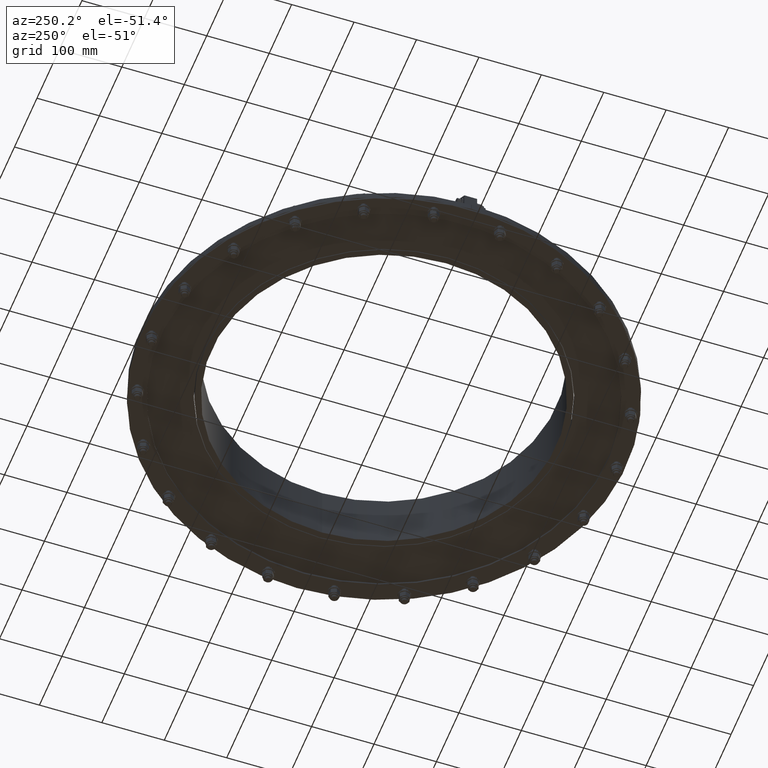
[diagram: clean part render]
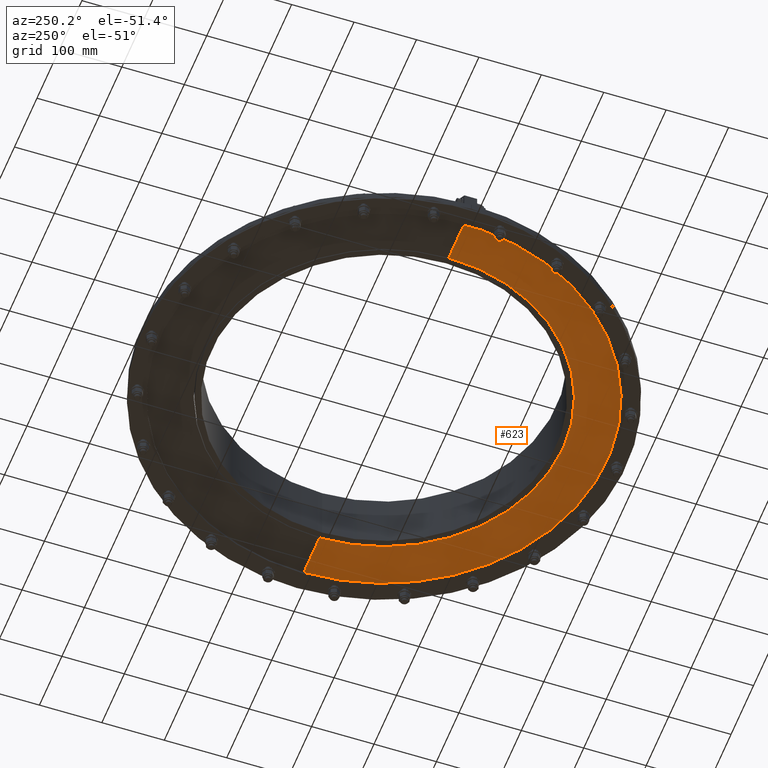
[diagram: same view with one face highlighted and labeled with its STEP entity id]
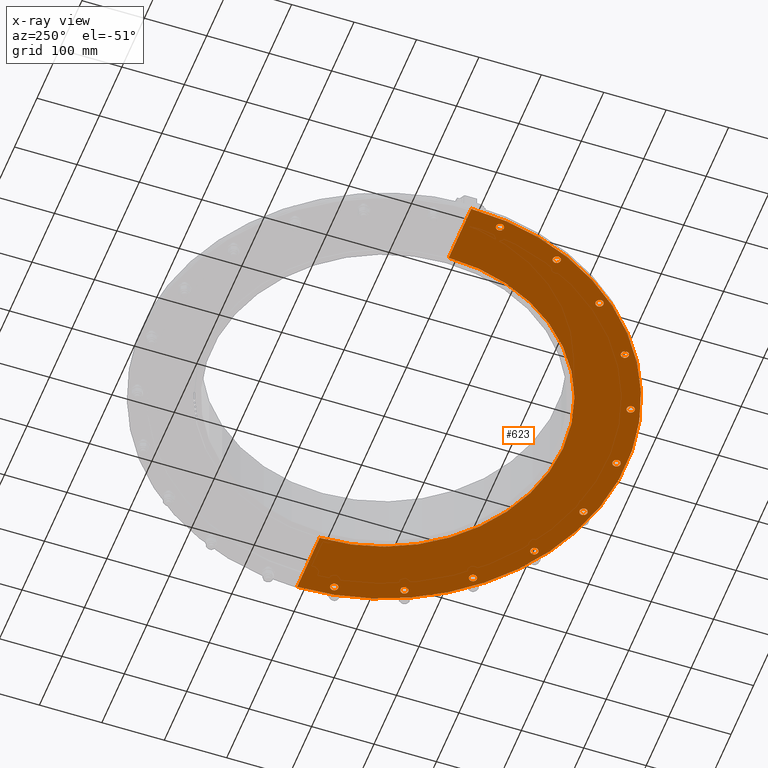
[diagram: x-ray of the same camera — body ghosted, the highlighted face saturated]
A machine part, auxiliary view. The second image highlights one B-rep face of the part: STEP entity #623.
The next image is the same camera in x-ray: the body ghosted, the highlighted face saturated — about 0% of this face is hidden behind the body in this view.
In plain terms, the highlighted planar face has unit normal (0, -0, -1).
Its self-contained STEP definition (entity closure, byte-faithful):
#406=CARTESIAN_POINT('',(387.49994838709335,0.2,0.0));
#407=VERTEX_POINT('',#406);
#422=CARTESIAN_POINT('',(286.99993031358042,0.2,0.0));
#423=VERTEX_POINT('',#422);
#430=CARTESIAN_POINT('',(387.49994838709335,0.2,0.0));
#431=DIRECTION('',(-1.0,0.0,0.0));
#432=VECTOR('',#431,100.50001807351293);
#433=LINE('',#430,#432);
#434=EDGE_CURVE('',#407,#423,#433,.T.);
#444=CARTESIAN_POINT('',(-387.49994838709335,0.2,0.0));
#445=VERTEX_POINT('',#444);
#454=CARTESIAN_POINT('',(-286.99993031358042,0.2,0.0));
#455=VERTEX_POINT('',#454);
#456=CARTESIAN_POINT('',(-286.99993031358042,0.2,0.0));
#457=DIRECTION('',(-1.0,0.0,0.0));
#458=VECTOR('',#457,100.50001807351293);
#459=LINE('',#456,#458);
#460=EDGE_CURVE('',#455,#445,#459,.T.);
#479=CARTESIAN_POINT('',(0.0,0.0,0.0));
#480=DIRECTION('',(0.0,0.0,-1.0));
#481=DIRECTION('',(-1.0,0.0,0.0));
#482=AXIS2_PLACEMENT_3D('',#479,#480,#481);
#483=PLANE('',#482);
#484=ORIENTED_EDGE('',*,*,#460,.T.);
#485=CARTESIAN_POINT('',(0.0,0.0,0.0));
#486=DIRECTION('',(0.0,0.0,-1.0));
#487=DIRECTION('',(-1.0,0.0,0.0));
#488=AXIS2_PLACEMENT_3D('',#485,#486,#487);
#489=CIRCLE('',#488,387.5);
#490=EDGE_CURVE('',#445,#407,#489,.T.);
#491=ORIENTED_EDGE('',*,*,#490,.T.);
#492=ORIENTED_EDGE('',*,*,#434,.T.);
#493=CARTESIAN_POINT('',(0.0,0.0,0.0));
#494=DIRECTION('',(0.0,0.0,1.0));
#495=DIRECTION('',(-1.0,0.0,0.0));
#496=AXIS2_PLACEMENT_3D('',#493,#494,#495);
#497=CIRCLE('',#496,287.0);
#498=EDGE_CURVE('',#423,#455,#497,.T.);
#499=ORIENTED_EDGE('',*,*,#498,.T.);
#500=EDGE_LOOP('',(#484,#491,#492,#499));
#501=FACE_OUTER_BOUND('',#500,.T.);
#502=CARTESIAN_POINT('',(-111.19537742343255,357.41113267140031,0.0));
#503=VERTEX_POINT('',#502);
#504=CARTESIAN_POINT('',(-104.94537742343255,357.41113267140031,0.0));
#505=DIRECTION('',(0.0,0.0,1.0));
#506=DIRECTION('',(1.0,0.0,0.0));
#507=AXIS2_PLACEMENT_3D('',#504,#505,#506);
#508=CIRCLE('',#507,6.25);
#509=EDGE_CURVE('',#503,#503,#508,.T.);
#510=ORIENTED_EDGE('',*,*,#509,.T.);
#511=EDGE_LOOP('',(#510));
#512=FACE_BOUND('',#511,.T.);
#513=CARTESIAN_POINT('',(-207.38553558730072,311.60611249935613,0.0));
#514=VERTEX_POINT('',#513);
#515=CARTESIAN_POINT('',(-201.38870450221015,313.36694097961504,0.0));
#516=DIRECTION('',(0.0,0.0,1.0));
#517=DIRECTION('',(0.959492973614497,0.28173255684143,0.0));
#518=AXIS2_PLACEMENT_3D('',#515,#516,#517);
#519=CIRCLE('',#518,6.25);
#520=EDGE_CURVE('',#514,#514,#519,.T.);
#521=ORIENTED_EDGE('',*,*,#520,.T.);
#522=EDGE_LOOP('',(#521));
#523=FACE_BOUND('',#522,.T.);
#524=CARTESIAN_POINT('',(-286.77455102715618,240.5566182855213,0.0));
#525=VERTEX_POINT('',#524);
#526=CARTESIAN_POINT('',(-281.51671644696131,243.93562339461877,0.0));
#527=DIRECTION('',(0.0,0.0,1.0));
#528=DIRECTION('',(0.841253532831181,0.540640817455598,0.0));
#529=AXIS2_PLACEMENT_3D('',#526,#527,#528);
#530=CIRCLE('',#529,6.250000000000001);
#531=EDGE_CURVE('',#525,#525,#530,.T.);
#532=ORIENTED_EDGE('',*,*,#531,.T.);
#533=EDGE_LOOP('',(#532));
#534=FACE_BOUND('',#533,.T.);
#535=CARTESIAN_POINT('',(-342.93079785671614,150.01865750348861,0.0));
#536=VERTEX_POINT('',#535);
#537=CARTESIAN_POINT('',(-338.83791826955814,154.74209234320276,0.0));
#538=DIRECTION('',(0.0,0.0,1.0));
#539=DIRECTION('',(0.654860733945285,0.755749574354258,0.0));
#540=AXIS2_PLACEMENT_3D('',#537,#538,#539);
#541=CIRCLE('',#540,6.250000000000001);
#542=EDGE_CURVE('',#536,#536,#541,.T.);
#543=ORIENTED_EDGE('',*,*,#542,.T.);
#544=EDGE_LOOP('',(#543));
#545=FACE_BOUND('',#544,.T.);
#546=CARTESIAN_POINT('',(-371.30483093190935,47.327077285832999,0.0));
#547=VERTEX_POINT('',#546);
#548=CARTESIAN_POINT('',(-368.70848710064757,53.01227725679874,0.0));
#549=DIRECTION('',(0.0,0.0,1.0));
#550=DIRECTION('',(0.415415013001886,0.909631995354518,0.0));
#551=AXIS2_PLACEMENT_3D('',#548,#549,#550);
#552=CIRCLE('',#551,6.25);
#553=EDGE_CURVE('',#547,#547,#552,.T.);
#554=ORIENTED_EDGE('',*,*,#553,.T.);
#555=EDGE_LOOP('',(#554));
#556=FACE_BOUND('',#555,.T.);
#557=CARTESIAN_POINT('',(369.5979548398555,59.198661268554496,0.0));
#558=VERTEX_POINT('',#557);
#559=CARTESIAN_POINT('',(368.70848710064752,53.01227725679869,0.0));
#560=DIRECTION('',(0.0,0.0,1.0));
#561=DIRECTION('',(-0.142314838273285,-0.989821441880933,0.0));
#562=AXIS2_PLACEMENT_3D('',#559,#560,#561);
#563=CIRCLE('',#562,6.250000000000002);
#564=EDGE_CURVE('',#558,#558,#563,.T.);
#565=ORIENTED_EDGE('',*,*,#564,.T.);
#566=EDGE_LOOP('',(#565));
#567=FACE_BOUND('',#566,.T.);
#568=CARTESIAN_POINT('',(337.94845053035021,160.92847635495843,0.0));
#569=VERTEX_POINT('',#568);
#570=CARTESIAN_POINT('',(338.83791826955814,154.74209234320261,0.0));
#571=DIRECTION('',(0.0,0.0,1.0));
#572=DIRECTION('',(0.142314838273285,-0.989821441880933,0.0));
#573=AXIS2_PLACEMENT_3D('',#570,#571,#572);
#574=CIRCLE('',#573,6.250000000000001);
#575=EDGE_CURVE('',#569,#569,#574,.T.);
#576=ORIENTED_EDGE('',*,*,#575,.T.);
#577=EDGE_LOOP('',(#576));
#578=FACE_BOUND('',#577,.T.);
#579=CARTESIAN_POINT('',(278.92037261569965,249.62082336558439,0.0));
#580=VERTEX_POINT('',#579);
#581=CARTESIAN_POINT('',(281.51671644696142,243.93562339461866,0.0));
#582=DIRECTION('',(0.0,0.0,1.0));
#583=DIRECTION('',(0.415415013001886,-0.909631995354519,0.0));
#584=AXIS2_PLACEMENT_3D('',#581,#582,#583);
#585=CIRCLE('',#584,6.250000000000003);
#586=EDGE_CURVE('',#580,#580,#585,.T.);
#587=ORIENTED_EDGE('',*,*,#586,.T.);
#588=EDGE_LOOP('',(#587));
#589=FACE_BOUND('',#588,.T.);
#590=CARTESIAN_POINT('',(197.29582491505204,318.09037581932921,0.0));
#591=VERTEX_POINT('',#590);
#592=CARTESIAN_POINT('',(201.38870450221009,313.36694097961515,0.0));
#593=DIRECTION('',(0.0,0.0,1.0));
#594=DIRECTION('',(0.654860733945285,-0.755749574354258,0.0));
#595=AXIS2_PLACEMENT_3D('',#592,#593,#594);
#596=CIRCLE('',#595,6.250000000000002);
#597=EDGE_CURVE('',#591,#591,#596,.T.);
#598=ORIENTED_EDGE('',*,*,#597,.T.);
#599=EDGE_LOOP('',(#598));
#600=FACE_BOUND('',#599,.T.);
#601=CARTESIAN_POINT('',(99.687542843237679,360.7901377804979,0.0));
#602=VERTEX_POINT('',#601);
#603=CARTESIAN_POINT('',(104.94537742343256,357.41113267140042,0.0));
#604=DIRECTION('',(0.0,0.0,1.0));
#605=DIRECTION('',(0.841253532831181,-0.540640817455597,0.0));
#606=AXIS2_PLACEMENT_3D('',#603,#604,#605);
#607=CIRCLE('',#606,6.250000000000002);
#608=EDGE_CURVE('',#602,#602,#607,.T.);
#609=ORIENTED_EDGE('',*,*,#608,.T.);
#610=EDGE_LOOP('',(#609));
#611=FACE_BOUND('',#610,.T.);
#612=CARTESIAN_POINT('',(-5.996831085090566,374.26082848025897,0.0));
#613=VERTEX_POINT('',#612);
#614=CARTESIAN_POINT('',(3.552714E-014,372.50000000000006,0.0));
#615=DIRECTION('',(0.0,0.0,1.0));
#616=DIRECTION('',(0.959492973614497,-0.28173255684143,0.0));
#617=AXIS2_PLACEMENT_3D('',#614,#615,#616);
#618=CIRCLE('',#617,6.250000000000001);
#619=EDGE_CURVE('',#613,#613,#618,.T.);
#620=ORIENTED_EDGE('',*,*,#619,.T.);
#621=EDGE_LOOP('',(#620));
#622=FACE_BOUND('',#621,.T.);
#623=ADVANCED_FACE('',(#501,#512,#523,#534,#545,#556,#567,#578,#589,#600,#611,#622),#483,.T.);